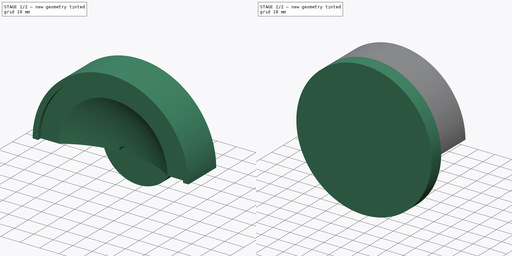
[diagram: build sequence overview — one tinted view per stage of 2, left to right]
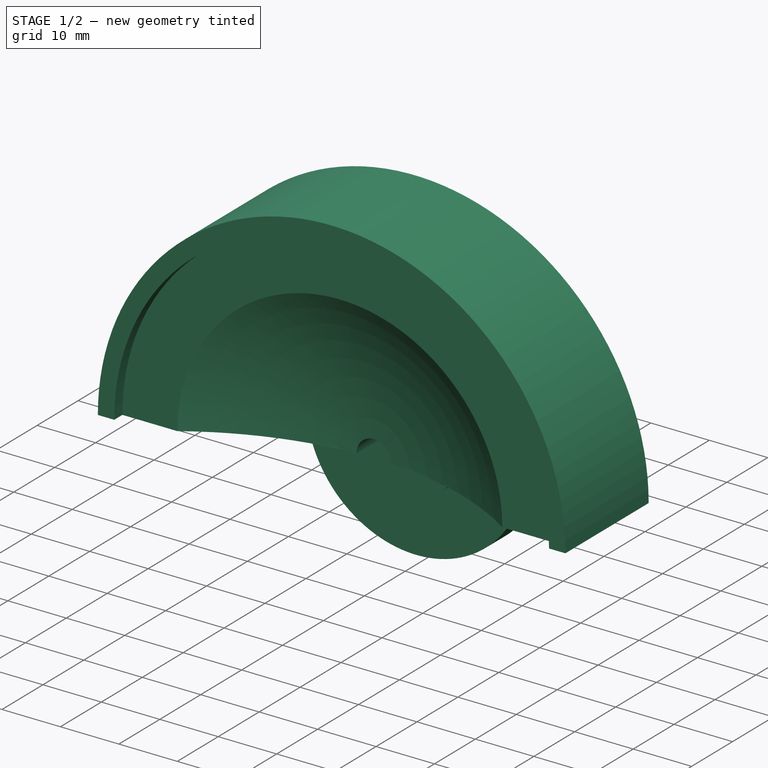
[diagram: stage 1 of 2 — iso view after this stage's code; geometry added in this stage tinted green]
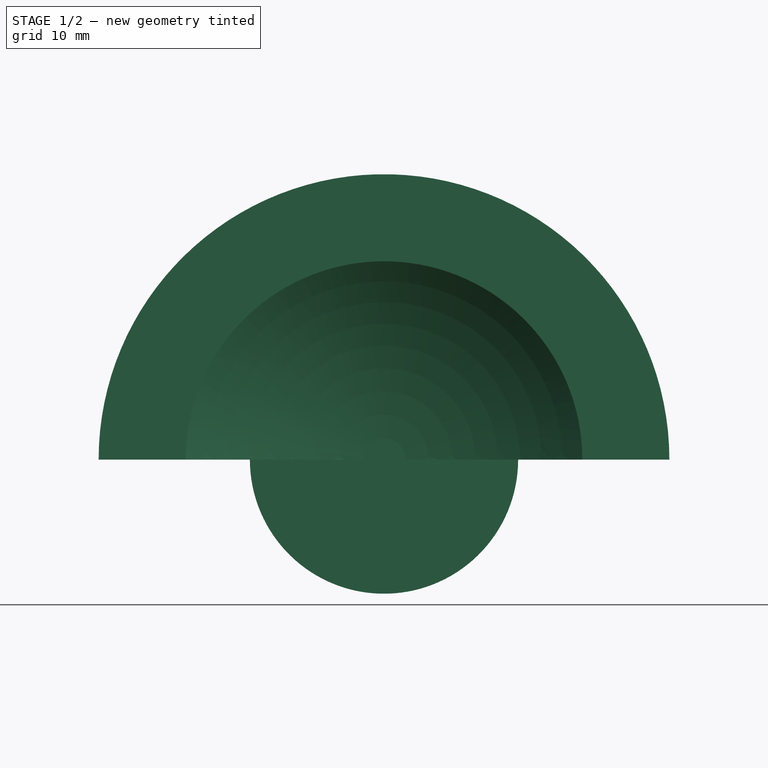
[diagram: stage 1 of 2 — front view after this stage's code; geometry added in this stage tinted green]
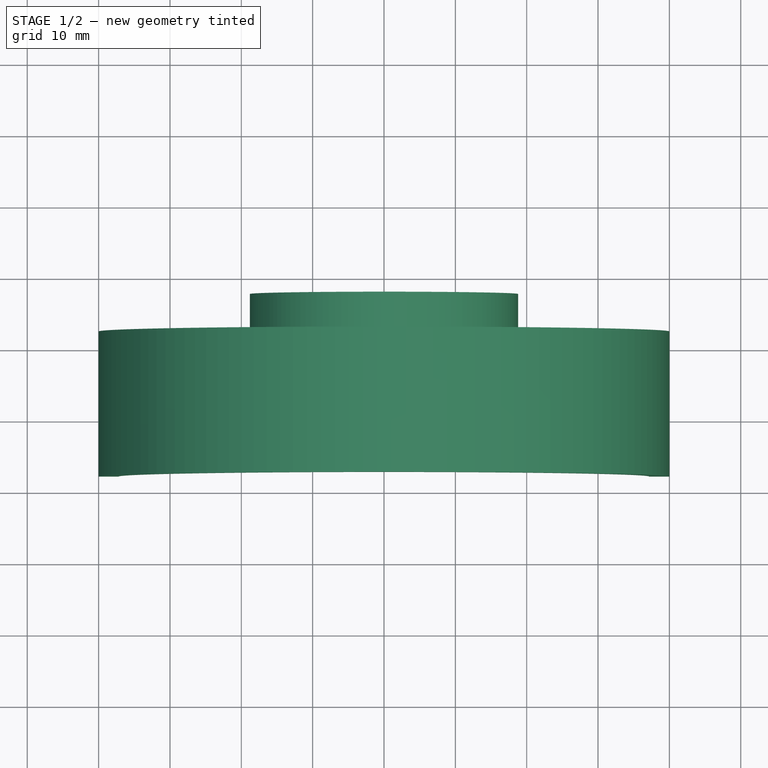
[diagram: stage 1 of 2 — top view after this stage's code; geometry added in this stage tinted green]
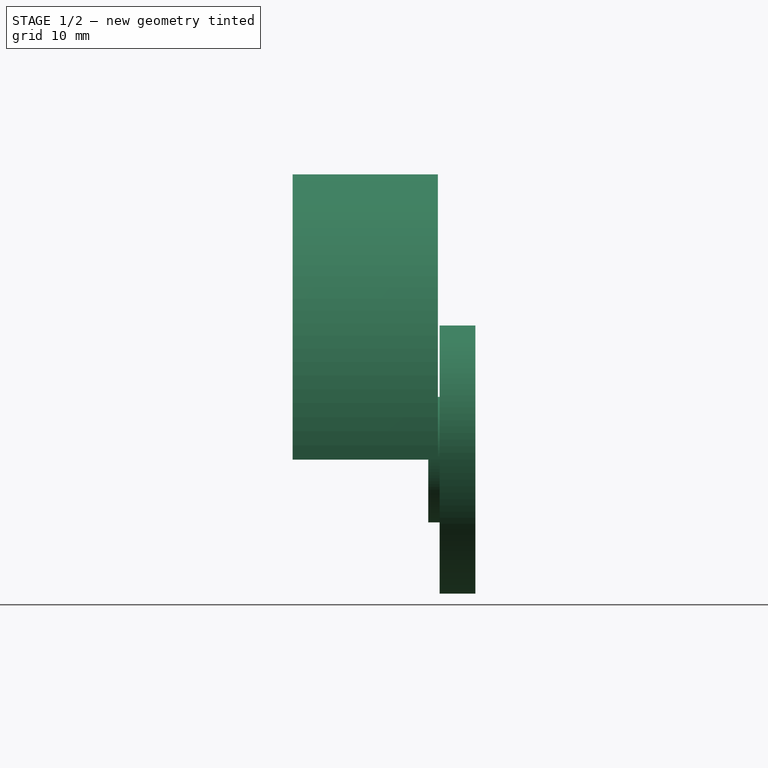
[diagram: stage 1 of 2 — right view after this stage's code; geometry added in this stage tinted green]
FCSTD DOCUMENT  (FreeCAD 0.18R16146 (Git))
Label: 60mm
License: All rights reserved
LicenseURL: http://en.wikipedia.org/wiki/All_rights_reserved
objects: Sketcher::SketchObject×3, PartDesign::Revolution×3, PartDesign::Body×3, App::Part×3
note: 12 computed .brp shape members not serialized (recipe doc carries the construction recipe); baked Part::Feature solids carry a one-line shape summary decoded from their .brp

FEATURE [PartDesign::Body] Body
  Group = -> [Sketch,Revolution]
  Origin = -> Origin001
  Tip = -> Revolution
FEATURE [App::Part] Part  label="Bottom"
  Group = -> [Body]
  Origin = -> Origin
FEATURE [Sketcher::SketchObject] Sketch001
  MapMode = 5
  Support = -> [XY_Plane003]
  sketch-geometry (12):
    g0: ArcOfCircle CenterX=0 CenterY=-37.5633 CenterZ=0 NormalX=0 NormalY=0 NormalZ=1 AngleXU=0 Radius=50 StartAngle=0.981231 EndAngle=1.51076
    g1: LineSegment [constr] StartX=0 StartY=0 StartZ=0 EndX=30 EndY=0 EndZ=0
    g2: LineSegment [constr] StartX=30 StartY=0 StartZ=0 EndX=33 EndY=0 EndZ=0
    g3: ArcOfCircle [constr] CenterX=0 CenterY=-37.5633 CenterZ=0 NormalX=0 NormalY=0 NormalZ=1 AngleXU=0 Radius=50 StartAngle=0.849978 EndAngle=0.981231
    g4: LineSegment StartX=27.8 StartY=3.99583 StartZ=0 EndX=37.2 EndY=3.99583 EndZ=0
    g5: LineSegment StartX=37.2 StartY=3.99583 StartZ=0 EndX=37.2 EndY=1.99583 EndZ=0
    g6: LineSegment StartX=37.2 StartY=1.99583 StartZ=0 EndX=40 EndY=1.99583 EndZ=0
    g7: LineSegment StartX=40 StartY=1.99583 StartZ=0 EndX=40 EndY=22.3466 EndZ=0
    g8: LineSegment StartX=40 StartY=22.3466 StartZ=0 EndX=9 EndY=22.3466 EndZ=0
    g9: LineSegment StartX=3 StartY=12.3466 StartZ=0 EndX=3 EndY=17.3466 EndZ=0
    g10: LineSegment StartX=3 StartY=17.3466 StartZ=0 EndX=9 EndY=17.3466 EndZ=0
    g11: LineSegment StartX=9 StartY=17.3466 StartZ=0 EndX=9 EndY=22.3466 EndZ=0
  constraints (37):
    c: PointOnObject(g0,g-2)
    c: Radius(g0) = 50
    c: DistanceX(g0,g0) = 24.8
    c: Coincident(g1,g-1)
    c: PointOnObject(g1,g-1)
    c: Coincident(g2,g1)
    c: PointOnObject(g2,g-1)
    c: DistanceX(g1,g1) = 30
    c: DistanceX(g2,g2) = 3
    c: PointOnObject(g3,g-2)
    c: Coincident(g3,g2)
    c: Coincident(g3,g0)
    c: Radius(g3) = 50
    c: Coincident(g4,g0)
    c: Horizontal(g4)
    c: Vertical(g5)
    c: Coincident(g6,g5)
    c: Horizontal(g6)
    c: Vertical(g7)
    c: Horizontal(g8)
    c: DistanceX(g-1,g0) = 3
    c: DistanceX(g-1,g7) = 40
    c: DistanceY(g5,g5) = 2
    c: DistanceX(g6,g6) = 2.8
    c: Coincident(g6,g7)
    c: Coincident(g7,g8)
    c: Coincident(g5,g4)
    c: Coincident(g9,g0)
    c: Vertical(g9)
    c: Coincident(g10,g9)
    c: Horizontal(g10)
    c: DistanceY(g10,g8) = 5
    c: DistanceX(g9,g10) = 6
    c: DistanceY(g9,g9) = 5
    c: Coincident(g11,g10)
    c: Vertical(g11)
    c: Coincident(g8,g11)
FEATURE [PartDesign::Revolution] Revolution001
  Angle = 180
  Axis = (0,1,0)
  Base = (0,0,0)
  Profile = -> Sketch001
  ReferenceAxis = -> Sketch001 [V_Axis]
  Reversed = true
FEATURE [PartDesign::Body] Body001
  Group = -> [Sketch001,Revolution001]
  Origin = -> Origin003
  Tip = -> Revolution001
FEATURE [App::Part] Part001  label="Top"
  Group = -> [Body001]
  Origin = -> Origin002
FEATURE [Sketcher::SketchObject] Sketch002
  MapMode = 5
  Support = -> [XY_Plane005]
  sketch-geometry (6):
    g0: LineSegment StartX=0 StartY=21 StartZ=0 EndX=8.8 EndY=21 EndZ=0
    g1: LineSegment StartX=8.8 StartY=21 StartZ=0 EndX=8.8 EndY=22.6 EndZ=0
    g2: LineSegment StartX=8.8 StartY=22.6 StartZ=0 EndX=18.8 EndY=22.6 EndZ=0
    g3: LineSegment StartX=18.8 StartY=22.6 StartZ=0 EndX=18.8 EndY=27.6 EndZ=0
    g4: LineSegment StartX=18.8 StartY=27.6 StartZ=0 EndX=0 EndY=27.6 EndZ=0
    g5: LineSegment StartX=0 StartY=27.6 StartZ=0 EndX=0 EndY=21 EndZ=0
  constraints (18):
    c: Horizontal(g0)
    c: Coincident(g1,g0)
    c: Vertical(g1)
    c: Coincident(g2,g1)
    c: Horizontal(g2)
    c: Coincident(g3,g2)
    c: Vertical(g3)
    c: Coincident(g4,g3)
    c: Horizontal(g4)
    c: Coincident(g5,g4)
    c: PointOnObject(g5,g-2)
    c: Vertical(g5)
    c: Coincident(g5,g0)
    c: DistanceX(g0,g0) = 8.8
    c: DistanceY(g0,g1) = 1.6
    c: DistanceY(g3,g3) = 5
    c: DistanceX(g2,g2) = 10
    c: DistanceY(g-1,g0) = 21
FEATURE [PartDesign::Revolution] Revolution002
  Angle = 360
  Axis = (0,1,0)
  Base = (0,0,0)
  Profile = -> Sketch002
  ReferenceAxis = -> Sketch002 [V_Axis]
  Reversed = true
FEATURE [PartDesign::Body] Body002
  Group = -> [Sketch002,Revolution002]
  Origin = -> Origin005
  Tip = -> Revolution002
FEATURE [App::Part] Part002  label="Cap"
  Group = -> [Body002]
  Origin = -> Origin004
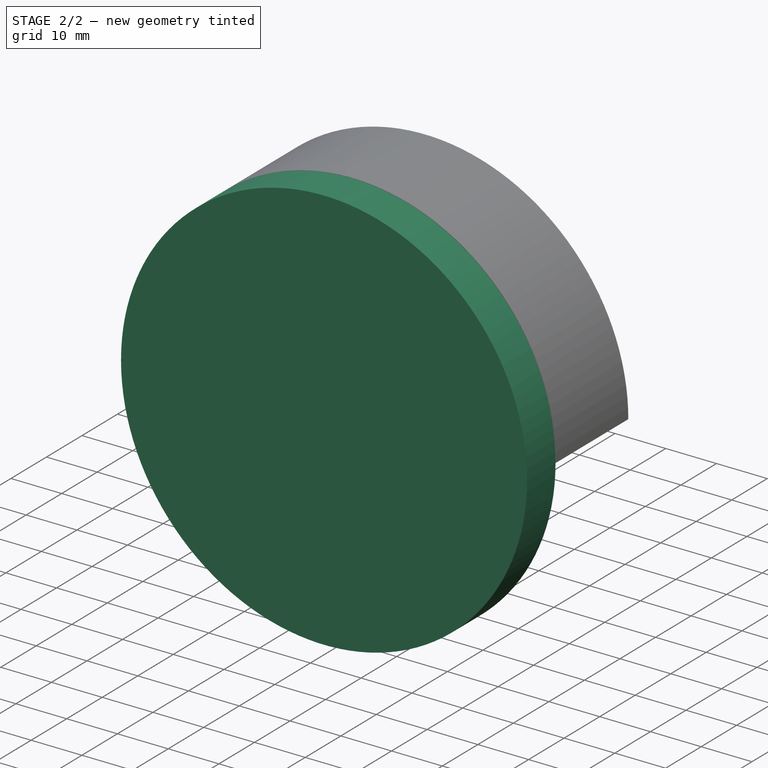
[diagram: stage 2 of 2 — iso view after this stage's code; geometry added in this stage tinted green]
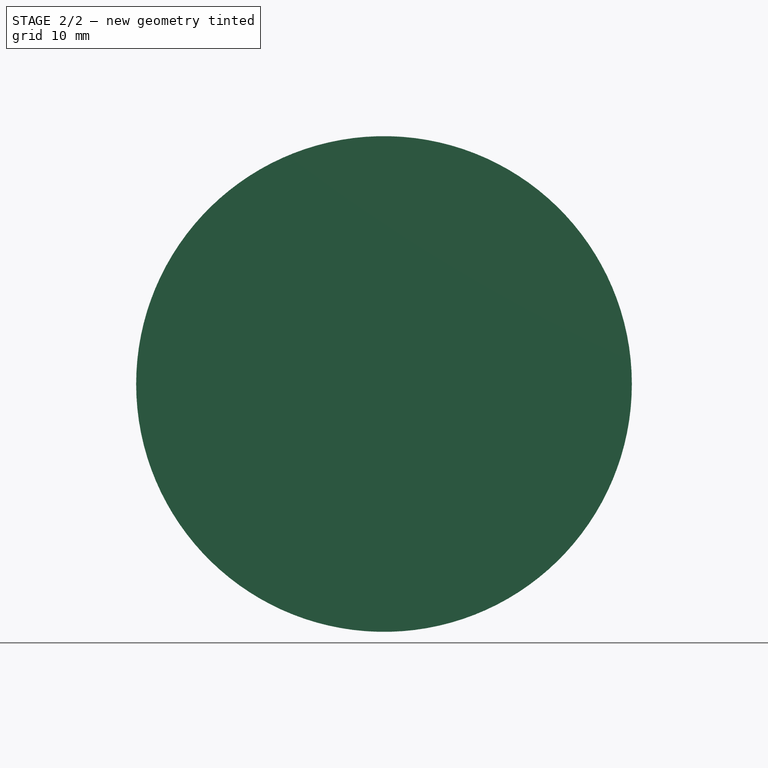
[diagram: stage 2 of 2 — front view after this stage's code; geometry added in this stage tinted green]
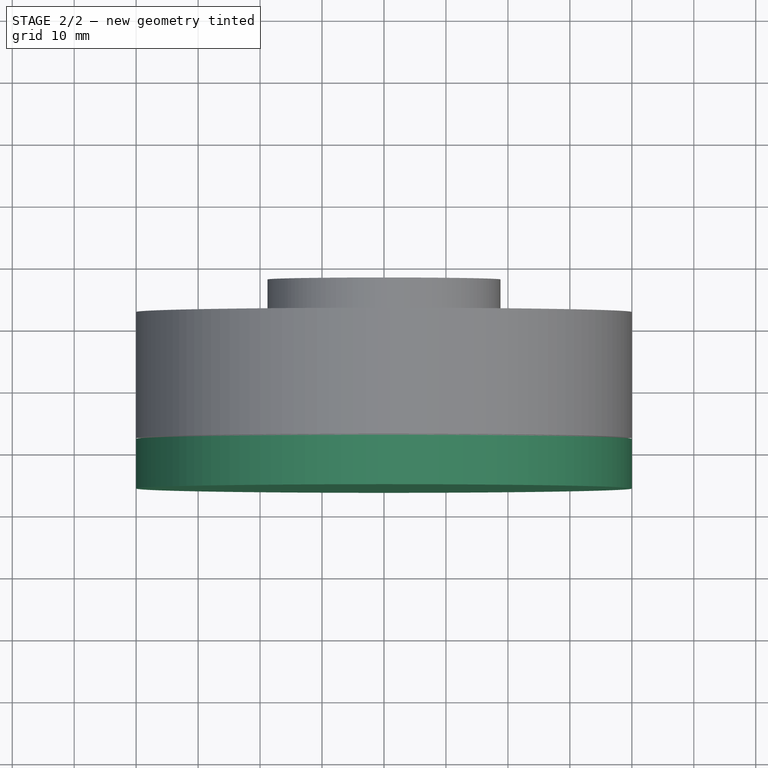
[diagram: stage 2 of 2 — top view after this stage's code; geometry added in this stage tinted green]
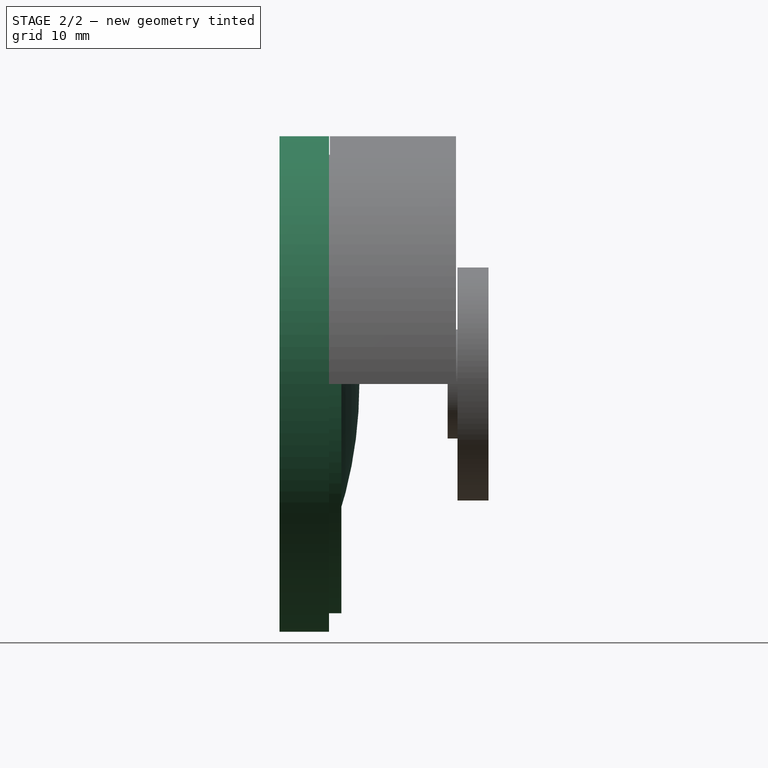
[diagram: stage 2 of 2 — right view after this stage's code; geometry added in this stage tinted green]
FEATURE [Sketcher::SketchObject] Sketch
  MapMode = 5
  Support = -> [XY_Plane001]
  sketch-geometry (9):
    g0: ArcOfCircle CenterX=0 CenterY=-37.5633 CenterZ=0 NormalX=0 NormalY=0 NormalZ=1 AngleXU=0 Radius=50 StartAngle=0.849978 EndAngle=0.976411
    g1: ArcOfCircle CenterX=0 CenterY=-63.2456 CenterZ=0 NormalX=0 NormalY=0 NormalZ=1 AngleXU=0 Radius=70 StartAngle=1.12789 EndAngle=1.5708
    g2: LineSegment StartX=30 StartY=7.1e-15 StartZ=0 EndX=33 EndY=0 EndZ=0
    g3: LineSegment StartX=28 StartY=3.86135 StartZ=0 EndX=37 EndY=3.86135 EndZ=0
    g4: LineSegment StartX=40 StartY=1.86135 StartZ=0 EndX=40 EndY=-6.13865 EndZ=0
    g5: LineSegment StartX=40 StartY=-6.13865 StartZ=0 EndX=0 EndY=-6.13865 EndZ=0
    g6: LineSegment StartX=0 StartY=-6.13865 StartZ=0 EndX=4.3e-15 EndY=6.75445 EndZ=0
    g7: LineSegment StartX=37 StartY=3.86135 StartZ=0 EndX=37 EndY=1.86135 EndZ=0
    g8: LineSegment StartX=37 StartY=1.86135 StartZ=0 EndX=40 EndY=1.86135 EndZ=0
  constraints (29):
    c: PointOnObject(g0,g-2)
    c: PointOnObject(g0,g-1)
    c: PointOnObject(g1,g-2)
    c: PointOnObject(g1,g-2)
    c: PointOnObject(g1,g-1)
    c: DistanceX(g-1,g1) = 30
    c: DistanceX(g1,g0) = 3
    c: Coincident(g2,g1)
    c: Coincident(g2,g0)
    c: Radius(g0) = 50
    c: Radius(g1) = 70
    c: Coincident(g3,g0)
    c: Horizontal(g3)
    c: PointOnObject(g5,g-2)
    c: Horizontal(g5)
    c: Coincident(g6,g5)
    c: Coincident(g6,g1)
    c: Vertical(g4)
    c: Coincident(g4,g5)
    c: DistanceX(g1,g3) = 37
    c: DistanceX(g5,g5) = 40
    c: DistanceY(g4,g4) = 8
    c: Coincident(g7,g3)
    c: Vertical(g7)
    c: Coincident(g8,g7)
    c: Horizontal(g8)
    c: Coincident(g4,g8)
    c: DistanceY(g7,g7) = 2
    c: DistanceX(g1,g0) = 28
FEATURE [PartDesign::Revolution] Revolution
  Angle = 360
  Axis = (0,1,0)
  Base = (0,0,0)
  Profile = -> Sketch
  ReferenceAxis = -> Sketch [V_Axis]
  Reversed = true
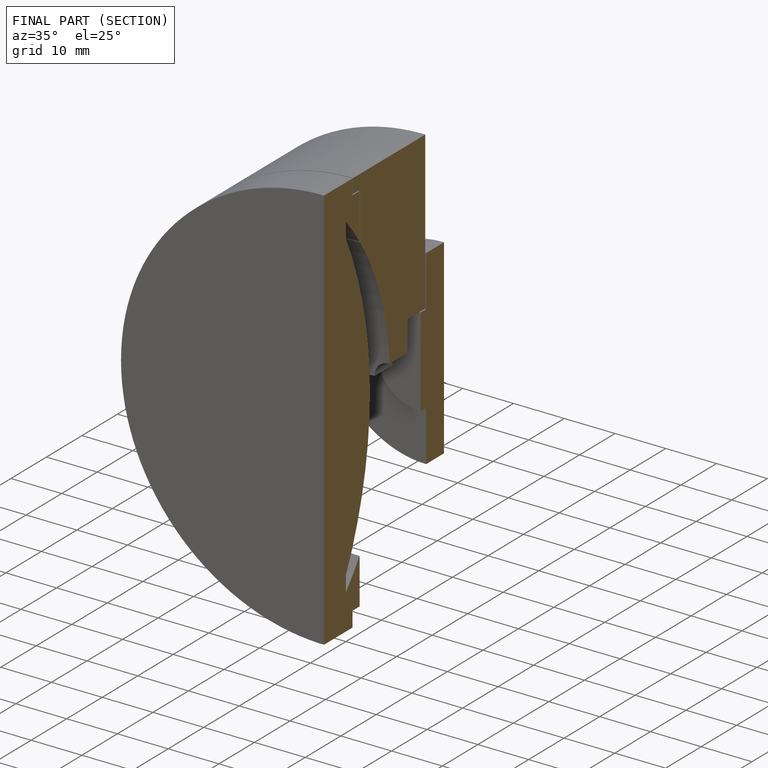
[diagram: finished part — half-section view (interior)]
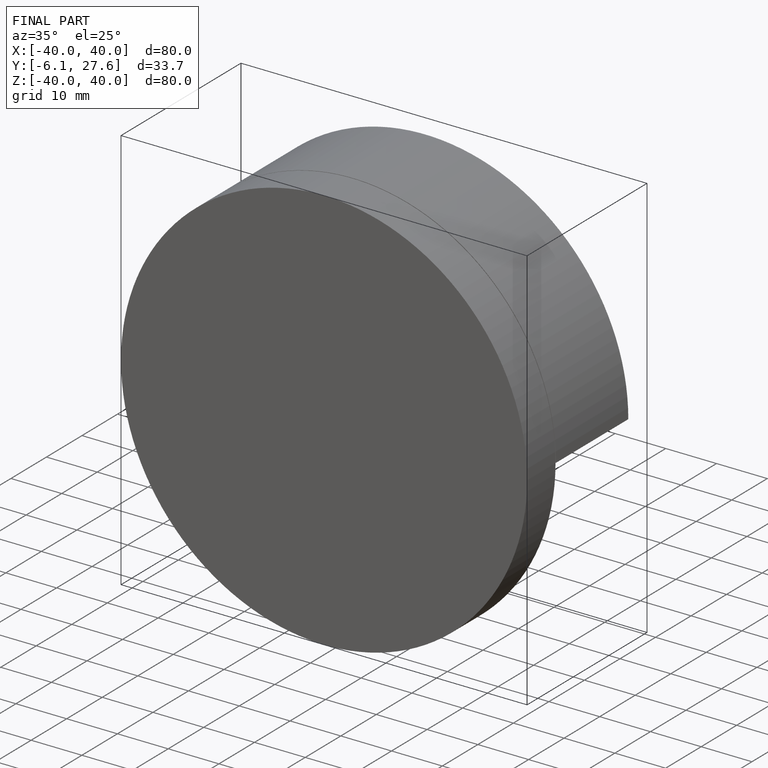
[diagram: finished part — iso view with bounding-box wireframe]
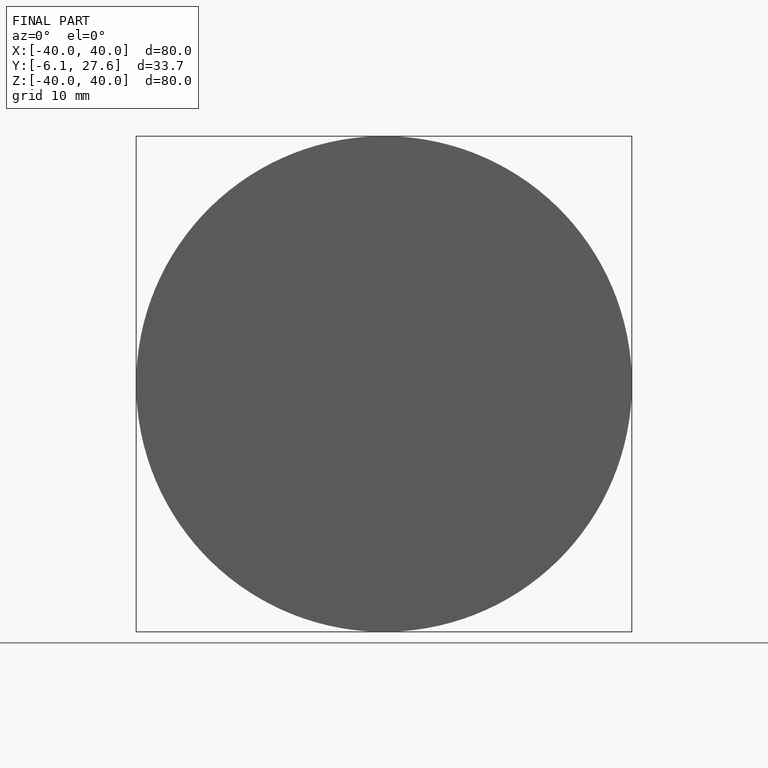
[diagram: finished part — front view with bounding-box wireframe]
